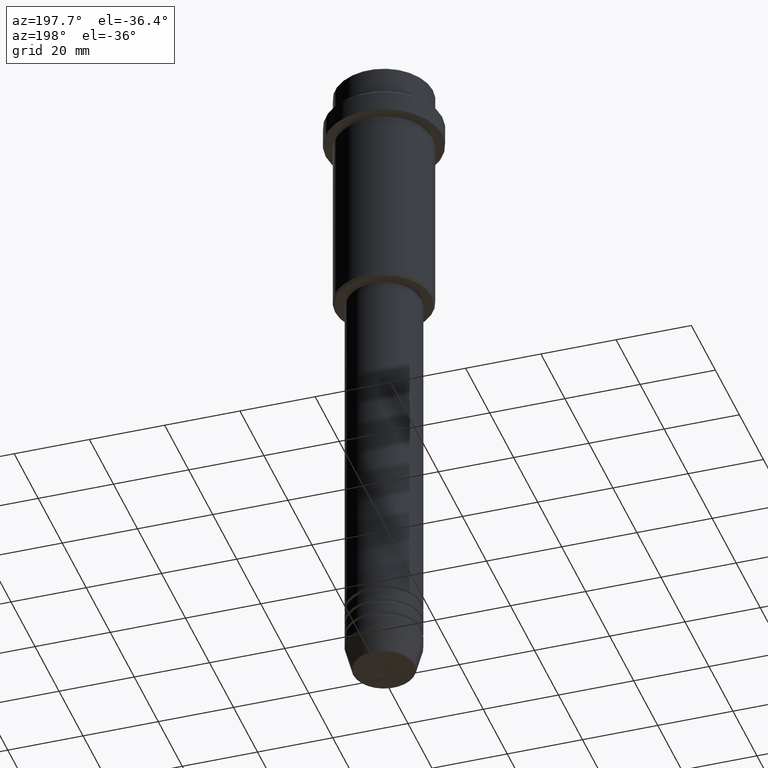
[diagram: clean part render]
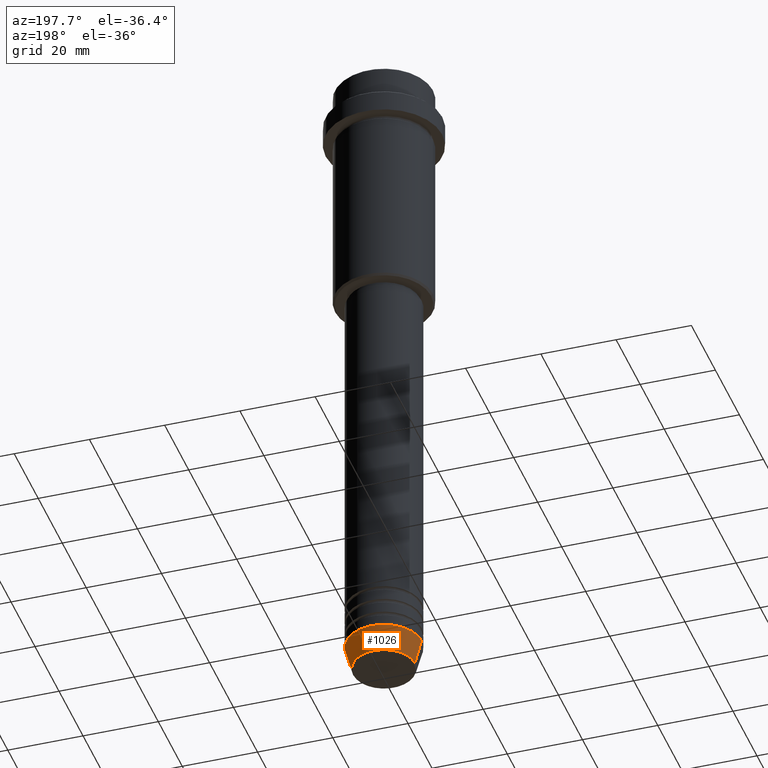
[diagram: same view with one face highlighted and labeled with its STEP entity id]
A machine part, auxiliary view. The second image highlights one B-rep face of the part: STEP entity #1026.
In plain terms, the highlighted conical surface has half-angle 15 deg.
Its self-contained STEP definition (entity closure, byte-faithful):
#53 = FACE_OUTER_BOUND ( 'NONE', #1326, .T. ) ;
#60 = DIRECTION ( 'NONE',  ( 1.000000000000000000, 0.000000000000000000, 0.000000000000000000 ) ) ;
#63 = AXIS2_PLACEMENT_3D ( 'NONE', #74, #516, #943 ) ;
#74 = CARTESIAN_POINT ( 'NONE',  ( 0.000000000000000000, 0.000000000000000000, -179.6294095225512422 ) ) ;
#118 = DIRECTION ( 'NONE',  ( 1.000000000000000000, 0.000000000000000000, 0.000000000000000000 ) ) ;
#148 = EDGE_CURVE ( 'NONE', #261, #1378, #267, .T. ) ;
#151 = ORIENTED_EDGE ( 'NONE', *, *, #148, .F. ) ;
#261 = VERTEX_POINT ( 'NONE', #327 ) ;
#267 = CIRCLE ( 'NONE', #975, 10.00000000000000000 ) ;
#327 = CARTESIAN_POINT ( 'NONE',  ( 10.00000000000000000, 0.000000000000000000, -173.0000000000000000 ) ) ;
#344 = VERTEX_POINT ( 'NONE', #714 ) ;
#424 = EDGE_CURVE ( 'NONE', #1355, #344, #1362, .T. ) ;
#454 = ORIENTED_EDGE ( 'NONE', *, *, #1211, .T. ) ;
#460 = VECTOR ( 'NONE', #1096, 1000.000000000000000 ) ;
#481 = CONICAL_SURFACE ( 'NONE', #1272, 10.00000000000000000, 0.2617993877991500740 ) ;
#493 = CARTESIAN_POINT ( 'NONE',  ( 0.000000000000000000, 0.000000000000000000, -173.0000000000000000 ) ) ;
#494 = EDGE_CURVE ( 'NONE', #1355, #261, #1174, .T. ) ;
#516 = DIRECTION ( 'NONE',  ( -0.000000000000000000, -0.000000000000000000, 1.000000000000000000 ) ) ;
#663 = LINE ( 'NONE', #1108, #460 ) ;
#714 = CARTESIAN_POINT ( 'NONE',  ( -8.223655072137191269, 1.115877042642912054E-15, -179.6294095225512422 ) ) ;
#816 = CARTESIAN_POINT ( 'NONE',  ( 8.223655072137191269, 0.000000000000000000, -179.6294095225512422 ) ) ;
#838 = VECTOR ( 'NONE', #1290, 1000.000000000000000 ) ;
#921 = DIRECTION ( 'NONE',  ( -0.000000000000000000, -0.000000000000000000, 1.000000000000000000 ) ) ;
#940 = CARTESIAN_POINT ( 'NONE',  ( 0.000000000000000000, 0.000000000000000000, -173.0000000000000000 ) ) ;
#943 = DIRECTION ( 'NONE',  ( 1.000000000000000000, 0.000000000000000000, 0.000000000000000000 ) ) ;
#975 = AXIS2_PLACEMENT_3D ( 'NONE', #940, #1331, #118 ) ;
#1026 = ADVANCED_FACE ( 'NONE', ( #53 ), #481, .T. ) ;
#1096 = DIRECTION ( 'NONE',  ( -0.2588190451025213501, 3.169619151431772337E-17, 0.9659258262890680902 ) ) ;
#1108 = CARTESIAN_POINT ( 'NONE',  ( -10.00000000000000000, 1.224646799147353256E-15, -173.0000000000000000 ) ) ;
#1161 = ORIENTED_EDGE ( 'NONE', *, *, #494, .F. ) ;
#1174 = LINE ( 'NONE', #1286, #838 ) ;
#1211 = EDGE_CURVE ( 'NONE', #344, #1378, #663, .T. ) ;
#1256 = CARTESIAN_POINT ( 'NONE',  ( -10.00000000000000000, 1.224646799147353256E-15, -173.0000000000000000 ) ) ;
#1272 = AXIS2_PLACEMENT_3D ( 'NONE', #493, #921, #60 ) ;
#1286 = CARTESIAN_POINT ( 'NONE',  ( 10.00000000000000000, 0.000000000000000000, -173.0000000000000000 ) ) ;
#1290 = DIRECTION ( 'NONE',  ( 0.2588190451025213501, 0.000000000000000000, 0.9659258262890680902 ) ) ;
#1326 = EDGE_LOOP ( 'NONE', ( #1416, #454, #151, #1161 ) ) ;
#1331 = DIRECTION ( 'NONE',  ( -0.000000000000000000, -0.000000000000000000, 1.000000000000000000 ) ) ;
#1355 = VERTEX_POINT ( 'NONE', #816 ) ;
#1362 = CIRCLE ( 'NONE', #63, 8.223655072137191269 ) ;
#1378 = VERTEX_POINT ( 'NONE', #1256 ) ;
#1416 = ORIENTED_EDGE ( 'NONE', *, *, #424, .T. ) ;